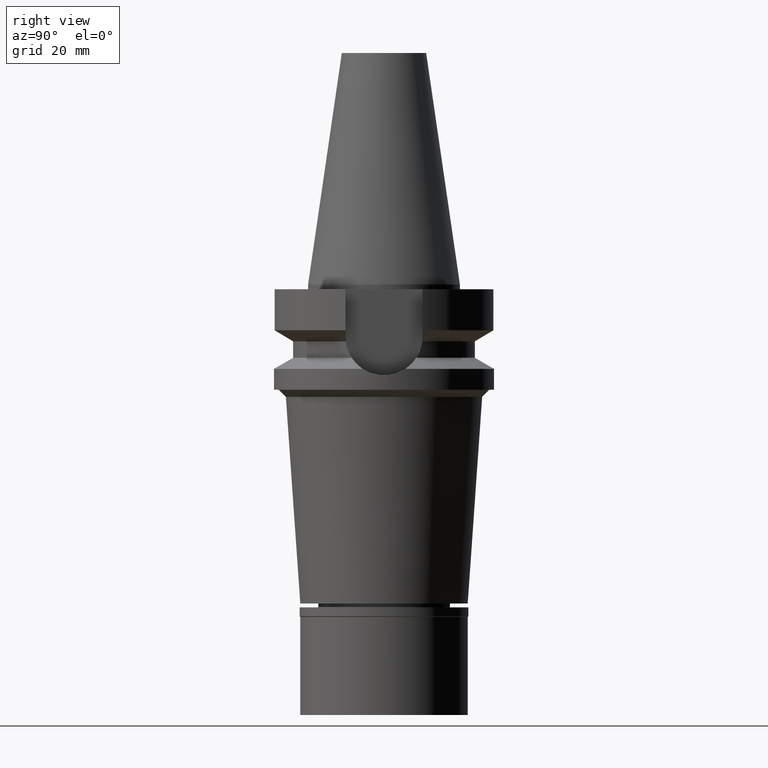
[diagram: clean part render]
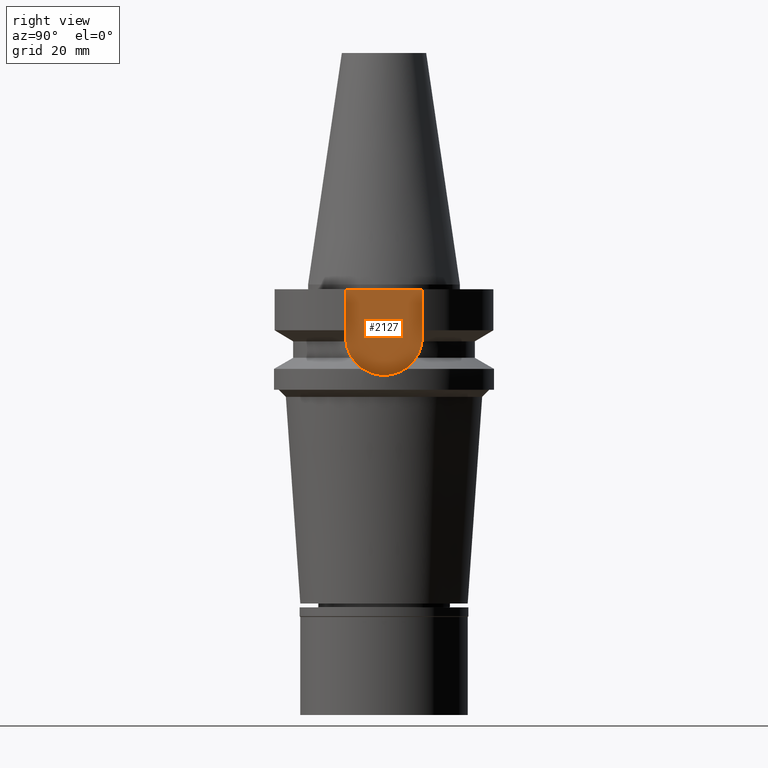
[diagram: same view with one face highlighted and labeled with its STEP entity id]
A machine part, right view. The second image highlights one B-rep face of the part: STEP entity #2127.
In plain terms, the highlighted planar face has unit normal (1, 0, 0).
Its self-contained STEP definition (entity closure, byte-faithful):
#82 = DIRECTION ( 'NONE',  ( -1.000000000000000000, 0.0000000000000000000, 0.0000000000000000000 ) ) ;
#173 = VECTOR ( 'NONE', #685, 1000.000000000000000 ) ;
#330 = VERTEX_POINT ( 'NONE', #2509 ) ;
#356 = AXIS2_PLACEMENT_3D ( 'NONE', #1912, #1675, #725 ) ;
#448 = CARTESIAN_POINT ( 'NONE',  ( 16.29999999999999716, -8.050000000000000711, -10.94999999999999929 ) ) ;
#464 = LINE ( 'NONE', #448, #173 ) ;
#564 = AXIS2_PLACEMENT_3D ( 'NONE', #1264, #82, #1227 ) ;
#601 = EDGE_CURVE ( 'NONE', #1037, #956, #2966, .T. ) ;
#627 = ORIENTED_EDGE ( 'NONE', *, *, #1626, .F. ) ;
#685 = DIRECTION ( 'NONE',  ( 0.0000000000000000000, 0.0000000000000000000, 1.000000000000000000 ) ) ;
#694 = ORIENTED_EDGE ( 'NONE', *, *, #1477, .F. ) ;
#725 = DIRECTION ( 'NONE',  ( 0.0000000000000000000, 1.000000000000000000, 0.0000000000000000000 ) ) ;
#922 = CARTESIAN_POINT ( 'NONE',  ( 16.29999999999999716, -8.050000000000000711, -10.94999999999999929 ) ) ;
#956 = VERTEX_POINT ( 'NONE', #2478 ) ;
#1037 = VERTEX_POINT ( 'NONE', #1976 ) ;
#1097 = VECTOR ( 'NONE', #2195, 1000.000000000000000 ) ;
#1196 = PLANE ( 'NONE',  #356 ) ;
#1227 = DIRECTION ( 'NONE',  ( 0.0000000000000000000, 1.000000000000000000, 0.0000000000000000000 ) ) ;
#1264 = CARTESIAN_POINT ( 'NONE',  ( 16.29999999999999716, 0.0000000000000000000, -10.94999999999999929 ) ) ;
#1466 = FACE_OUTER_BOUND ( 'NONE', #1777, .T. ) ;
#1476 = VERTEX_POINT ( 'NONE', #922 ) ;
#1477 = EDGE_CURVE ( 'NONE', #330, #1476, #2782, .T. ) ;
#1554 = DIRECTION ( 'NONE',  ( 0.0000000000000000000, -1.000000000000000000, 0.0000000000000000000 ) ) ;
#1626 = EDGE_CURVE ( 'NONE', #1037, #330, #2212, .T. ) ;
#1675 = DIRECTION ( 'NONE',  ( 1.000000000000000000, 0.0000000000000000000, 0.0000000000000000000 ) ) ;
#1777 = EDGE_LOOP ( 'NONE', ( #1795, #694, #627, #2315 ) ) ;
#1789 = CARTESIAN_POINT ( 'NONE',  ( 16.29999999999999716, 8.050000000000000711, -1.000000000000000000 ) ) ;
#1795 = ORIENTED_EDGE ( 'NONE', *, *, #2910, .F. ) ;
#1912 = CARTESIAN_POINT ( 'NONE',  ( 16.29999999999999716, 0.0000000000000000000, 0.0000000000000000000 ) ) ;
#1967 = CARTESIAN_POINT ( 'NONE',  ( 16.29999999999999716, 8.050000000000000711, -1.000000000000000000 ) ) ;
#1976 = CARTESIAN_POINT ( 'NONE',  ( 16.29999999999999716, 8.050000000000000711, -1.000000000000000000 ) ) ;
#2127 = ADVANCED_FACE ( 'NONE', ( #1466 ), #1196, .T. ) ;
#2195 = DIRECTION ( 'NONE',  ( 0.0000000000000000000, 0.0000000000000000000, -1.000000000000000000 ) ) ;
#2212 = LINE ( 'NONE', #1967, #1097 ) ;
#2315 = ORIENTED_EDGE ( 'NONE', *, *, #601, .T. ) ;
#2478 = CARTESIAN_POINT ( 'NONE',  ( 16.29999999999999716, -8.050000000000000711, -1.000000000000000000 ) ) ;
#2480 = VECTOR ( 'NONE', #1554, 1000.000000000000000 ) ;
#2509 = CARTESIAN_POINT ( 'NONE',  ( 16.29999999999999716, 8.050000000000000711, -10.94999999999999929 ) ) ;
#2782 = CIRCLE ( 'NONE', #564, 8.050000000000000711 ) ;
#2910 = EDGE_CURVE ( 'NONE', #1476, #956, #464, .T. ) ;
#2966 = LINE ( 'NONE', #1789, #2480 ) ;